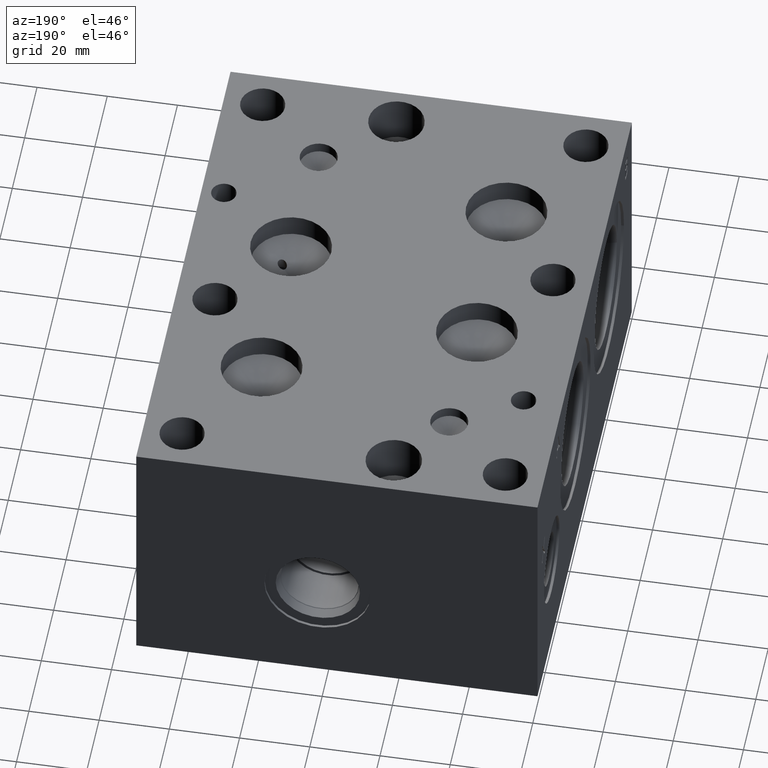
[diagram: clean part render]
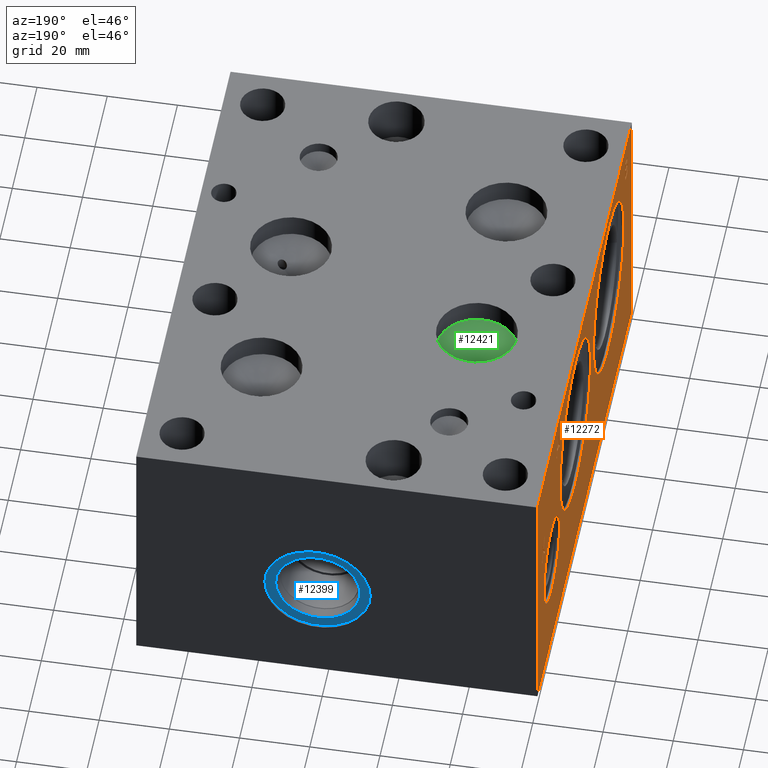
[diagram: same view with three faces highlighted in distinct colors, each labeled with its STEP entity id]
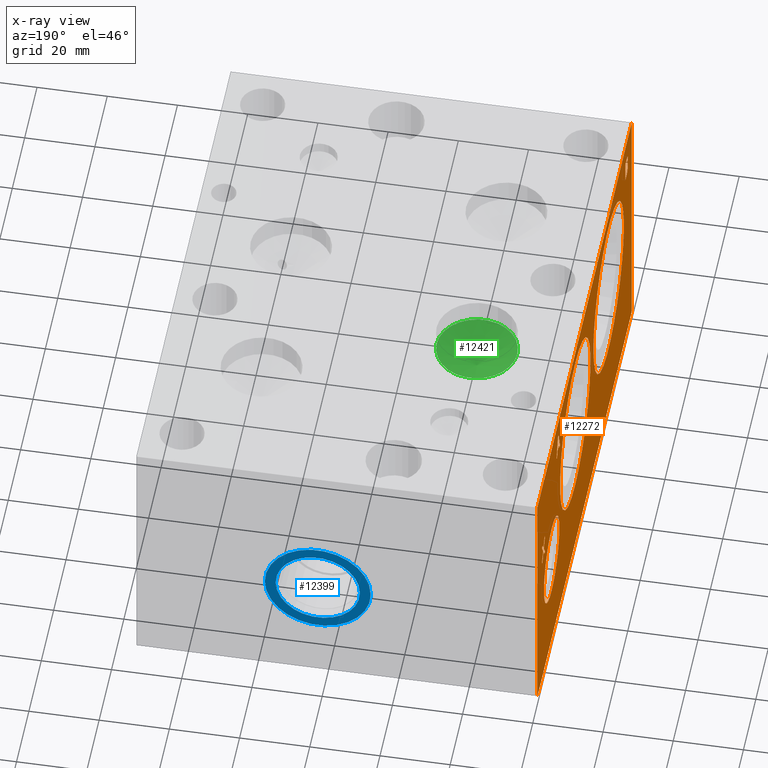
[diagram: x-ray of the same camera — body ghosted, the three highlighted faces saturated]
A machine part, auxiliary view with three faces highlighted in distinct colors.
The next image is the same camera in x-ray (body ghosted, the three faces saturated) — at least one of them is partly hidden behind the body in this view.
Their STEP definitions:

[orange] entity #12272 — the highlighted planar face has unit normal (-1, 0, 0).
#160=CIRCLE('',#12779,12.5095);
#161=CIRCLE('',#12780,12.5095);
#162=CIRCLE('',#12781,24.5618);
#163=CIRCLE('',#12782,24.5618);
#164=CIRCLE('',#12783,24.5618);
#165=CIRCLE('',#12784,24.5618);
#466=FACE_BOUND('',#2003,.T.);
#467=FACE_BOUND('',#2004,.T.);
#468=FACE_BOUND('',#2005,.T.);
#469=FACE_BOUND('',#2006,.T.);
#470=FACE_BOUND('',#2007,.T.);
#471=FACE_BOUND('',#2008,.T.);
#806=PLANE('',#12778);
#1315=FACE_OUTER_BOUND('',#2002,.T.);
#2002=EDGE_LOOP('',(#10177,#10178,#10179,#10180));
#2003=EDGE_LOOP('',(#10181,#10182,#10183,#10184,#10185,#10186,#10187,#10188,
#10189,#10190));
#2004=EDGE_LOOP('',(#10191,#10192));
#2005=EDGE_LOOP('',(#10193,#10194));
#2006=EDGE_LOOP('',(#10195,#10196));
#2007=EDGE_LOOP('',(#10197,#10198,#10199,#10200,#10201,#10202,#10203,#10204,
#10205,#10206,#10207,#10208));
#2008=EDGE_LOOP('',(#10209,#10210,#10211,#10212,#10213,#10214,#10215,#10216));
#2277=LINE('',#16056,#3394);
#2741=LINE('',#19233,#3858);
#3147=LINE('',#20354,#4264);
#3153=LINE('',#20417,#4270);
#3156=LINE('',#20423,#4273);
#3159=LINE('',#20429,#4276);
#3163=LINE('',#20471,#4280);
#3164=LINE('',#20472,#4281);
#3165=LINE('',#20487,#4282);
#3166=LINE('',#20489,#4283);
#3167=LINE('',#20491,#4284);
#3168=LINE('',#20493,#4285);
#3169=LINE('',#20495,#4286);
#3170=LINE('',#20497,#4287);
#3171=LINE('',#20499,#4288);
#3172=LINE('',#20501,#4289);
#3173=LINE('',#20503,#4290);
#3174=LINE('',#20505,#4291);
#3175=LINE('',#20507,#4292);
#3176=LINE('',#20508,#4293);
#3177=LINE('',#20511,#4294);
#3178=LINE('',#20513,#4295);
#3179=LINE('',#20515,#4296);
#3180=LINE('',#20517,#4297);
#3181=LINE('',#20519,#4298);
#3182=LINE('',#20521,#4299);
#3183=LINE('',#20523,#4300);
#3184=LINE('',#20524,#4301);
#3394=VECTOR('',#13283,10.);
#3858=VECTOR('',#14025,10.);
#4264=VECTOR('',#14727,10.);
#4270=VECTOR('',#14735,10.);
#4273=VECTOR('',#14740,10.);
#4276=VECTOR('',#14745,10.);
#4280=VECTOR('',#14753,10.);
#4281=VECTOR('',#14754,10.);
#4282=VECTOR('',#14767,10.);
#4283=VECTOR('',#14768,10.);
#4284=VECTOR('',#14769,10.);
#4285=VECTOR('',#14770,10.);
#4286=VECTOR('',#14771,10.);
#4287=VECTOR('',#14772,10.);
#4288=VECTOR('',#14773,10.);
#4289=VECTOR('',#14774,10.);
#4290=VECTOR('',#14775,10.);
#4291=VECTOR('',#14776,10.);
#4292=VECTOR('',#14777,10.);
#4293=VECTOR('',#14778,10.);
#4294=VECTOR('',#14779,10.);
#4295=VECTOR('',#14780,10.);
#4296=VECTOR('',#14781,10.);
#4297=VECTOR('',#14782,10.);
#4298=VECTOR('',#14783,10.);
#4299=VECTOR('',#14784,10.);
#4300=VECTOR('',#14785,10.);
#4301=VECTOR('',#14786,10.);
#4786=B_SPLINE_CURVE_WITH_KNOTS('',2,(#20340,#20341,#20342,#20343),
 .UNSPECIFIED.,.F.,.F.,(3,1,3),(0.,1.,2.),.UNSPECIFIED.);
#4788=B_SPLINE_CURVE_WITH_KNOTS('',2,(#20367,#20368,#20369,#20370),
 .UNSPECIFIED.,.F.,.F.,(3,1,3),(0.,1.,2.),.UNSPECIFIED.);
#4790=B_SPLINE_CURVE_WITH_KNOTS('',2,(#20386,#20387,#20388,#20389),
 .UNSPECIFIED.,.F.,.F.,(3,1,3),(0.,1.,2.),.UNSPECIFIED.);
#4792=B_SPLINE_CURVE_WITH_KNOTS('',2,(#20405,#20406,#20407,#20408),
 .UNSPECIFIED.,.F.,.F.,(3,1,3),(0.,1.,2.),.UNSPECIFIED.);
#4794=B_SPLINE_CURVE_WITH_KNOTS('',2,(#20442,#20443,#20444,#20445),
 .UNSPECIFIED.,.F.,.F.,(3,1,3),(0.,1.,2.),.UNSPECIFIED.);
#4796=B_SPLINE_CURVE_WITH_KNOTS('',2,(#20460,#20461,#20462,#20463),
 .UNSPECIFIED.,.F.,.F.,(3,1,3),(0.,1.,2.),.UNSPECIFIED.);
#4852=VERTEX_POINT('',#16052);
#4854=VERTEX_POINT('',#16055);
#5348=VERTEX_POINT('',#19231);
#5639=VERTEX_POINT('',#20338);
#5640=VERTEX_POINT('',#20339);
#5643=VERTEX_POINT('',#20353);
#5645=VERTEX_POINT('',#20366);
#5647=VERTEX_POINT('',#20385);
#5649=VERTEX_POINT('',#20404);
#5651=VERTEX_POINT('',#20416);
#5653=VERTEX_POINT('',#20422);
#5655=VERTEX_POINT('',#20428);
#5657=VERTEX_POINT('',#20441);
#5659=VERTEX_POINT('',#20470);
#5660=VERTEX_POINT('',#20473);
#5661=VERTEX_POINT('',#20474);
#5662=VERTEX_POINT('',#20477);
#5663=VERTEX_POINT('',#20478);
#5664=VERTEX_POINT('',#20481);
#5665=VERTEX_POINT('',#20482);
#5666=VERTEX_POINT('',#20485);
#5667=VERTEX_POINT('',#20486);
#5668=VERTEX_POINT('',#20488);
#5669=VERTEX_POINT('',#20490);
#5670=VERTEX_POINT('',#20492);
#5671=VERTEX_POINT('',#20494);
#5672=VERTEX_POINT('',#20496);
#5673=VERTEX_POINT('',#20498);
#5674=VERTEX_POINT('',#20500);
#5675=VERTEX_POINT('',#20502);
#5676=VERTEX_POINT('',#20504);
#5677=VERTEX_POINT('',#20506);
#5678=VERTEX_POINT('',#20509);
#5679=VERTEX_POINT('',#20510);
#5680=VERTEX_POINT('',#20512);
#5681=VERTEX_POINT('',#20514);
#5682=VERTEX_POINT('',#20516);
#5683=VERTEX_POINT('',#20518);
#5684=VERTEX_POINT('',#20520);
#5685=VERTEX_POINT('',#20522);
#6050=EDGE_CURVE('',#4854,#4852,#2277,.T.);
#6786=EDGE_CURVE('',#4852,#5348,#2741,.T.);
#7222=EDGE_CURVE('',#5639,#5640,#4786,.T.);
#7226=EDGE_CURVE('',#5643,#5639,#3147,.T.);
#7229=EDGE_CURVE('',#5645,#5643,#4788,.T.);
#7232=EDGE_CURVE('',#5647,#5645,#4790,.T.);
#7235=EDGE_CURVE('',#5649,#5647,#4792,.T.);
#7238=EDGE_CURVE('',#5651,#5649,#3153,.T.);
#7241=EDGE_CURVE('',#5653,#5651,#3156,.T.);
#7244=EDGE_CURVE('',#5655,#5653,#3159,.T.);
#7247=EDGE_CURVE('',#5657,#5655,#4794,.T.);
#7250=EDGE_CURVE('',#5640,#5657,#4796,.T.);
#7252=EDGE_CURVE('',#5659,#5348,#3163,.T.);
#7253=EDGE_CURVE('',#4854,#5659,#3164,.T.);
#7254=EDGE_CURVE('',#5660,#5661,#160,.T.);
#7255=EDGE_CURVE('',#5661,#5660,#161,.T.);
#7256=EDGE_CURVE('',#5662,#5663,#162,.T.);
#7257=EDGE_CURVE('',#5663,#5662,#163,.T.);
#7258=EDGE_CURVE('',#5664,#5665,#164,.T.);
#7259=EDGE_CURVE('',#5665,#5664,#165,.T.);
#7260=EDGE_CURVE('',#5666,#5667,#3165,.T.);
#7261=EDGE_CURVE('',#5667,#5668,#3166,.T.);
#7262=EDGE_CURVE('',#5668,#5669,#3167,.T.);
#7263=EDGE_CURVE('',#5669,#5670,#3168,.T.);
#7264=EDGE_CURVE('',#5670,#5671,#3169,.T.);
#7265=EDGE_CURVE('',#5671,#5672,#3170,.T.);
#7266=EDGE_CURVE('',#5672,#5673,#3171,.T.);
#7267=EDGE_CURVE('',#5673,#5674,#3172,.T.);
#7268=EDGE_CURVE('',#5674,#5675,#3173,.T.);
#7269=EDGE_CURVE('',#5675,#5676,#3174,.T.);
#7270=EDGE_CURVE('',#5676,#5677,#3175,.T.);
#7271=EDGE_CURVE('',#5677,#5666,#3176,.T.);
#7272=EDGE_CURVE('',#5678,#5679,#3177,.T.);
#7273=EDGE_CURVE('',#5679,#5680,#3178,.T.);
#7274=EDGE_CURVE('',#5680,#5681,#3179,.T.);
#7275=EDGE_CURVE('',#5681,#5682,#3180,.T.);
#7276=EDGE_CURVE('',#5682,#5683,#3181,.T.);
#7277=EDGE_CURVE('',#5683,#5684,#3182,.T.);
#7278=EDGE_CURVE('',#5684,#5685,#3183,.T.);
#7279=EDGE_CURVE('',#5685,#5678,#3184,.T.);
#10177=ORIENTED_EDGE('',*,*,#6050,.T.);
#10178=ORIENTED_EDGE('',*,*,#6786,.T.);
#10179=ORIENTED_EDGE('',*,*,#7252,.F.);
#10180=ORIENTED_EDGE('',*,*,#7253,.F.);
#10181=ORIENTED_EDGE('',*,*,#7222,.T.);
#10182=ORIENTED_EDGE('',*,*,#7250,.T.);
#10183=ORIENTED_EDGE('',*,*,#7247,.T.);
#10184=ORIENTED_EDGE('',*,*,#7244,.T.);
#10185=ORIENTED_EDGE('',*,*,#7241,.T.);
#10186=ORIENTED_EDGE('',*,*,#7238,.T.);
#10187=ORIENTED_EDGE('',*,*,#7235,.T.);
#10188=ORIENTED_EDGE('',*,*,#7232,.T.);
#10189=ORIENTED_EDGE('',*,*,#7229,.T.);
#10190=ORIENTED_EDGE('',*,*,#7226,.T.);
#10191=ORIENTED_EDGE('',*,*,#7254,.T.);
#10192=ORIENTED_EDGE('',*,*,#7255,.T.);
#10193=ORIENTED_EDGE('',*,*,#7256,.T.);
#10194=ORIENTED_EDGE('',*,*,#7257,.T.);
#10195=ORIENTED_EDGE('',*,*,#7258,.T.);
#10196=ORIENTED_EDGE('',*,*,#7259,.T.);
#10197=ORIENTED_EDGE('',*,*,#7260,.T.);
#10198=ORIENTED_EDGE('',*,*,#7261,.T.);
#10199=ORIENTED_EDGE('',*,*,#7262,.T.);
#10200=ORIENTED_EDGE('',*,*,#7263,.T.);
#10201=ORIENTED_EDGE('',*,*,#7264,.T.);
#10202=ORIENTED_EDGE('',*,*,#7265,.T.);
#10203=ORIENTED_EDGE('',*,*,#7266,.T.);
#10204=ORIENTED_EDGE('',*,*,#7267,.T.);
#10205=ORIENTED_EDGE('',*,*,#7268,.T.);
#10206=ORIENTED_EDGE('',*,*,#7269,.T.);
#10207=ORIENTED_EDGE('',*,*,#7270,.T.);
#10208=ORIENTED_EDGE('',*,*,#7271,.T.);
#10209=ORIENTED_EDGE('',*,*,#7272,.T.);
#10210=ORIENTED_EDGE('',*,*,#7273,.T.);
#10211=ORIENTED_EDGE('',*,*,#7274,.T.);
#10212=ORIENTED_EDGE('',*,*,#7275,.T.);
#10213=ORIENTED_EDGE('',*,*,#7276,.T.);
#10214=ORIENTED_EDGE('',*,*,#7277,.T.);
#10215=ORIENTED_EDGE('',*,*,#7278,.T.);
#10216=ORIENTED_EDGE('',*,*,#7279,.T.);
#12272=ADVANCED_FACE('',(#1315,#466,#467,#468,#469,#470,#471),#806,.T.);
#12778=AXIS2_PLACEMENT_3D('',#20469,#14751,#14752);
#12779=AXIS2_PLACEMENT_3D('',#20475,#14755,#14756);
#12780=AXIS2_PLACEMENT_3D('',#20476,#14757,#14758);
#12781=AXIS2_PLACEMENT_3D('',#20479,#14759,#14760);
#12782=AXIS2_PLACEMENT_3D('',#20480,#14761,#14762);
#12783=AXIS2_PLACEMENT_3D('',#20483,#14763,#14764);
#12784=AXIS2_PLACEMENT_3D('',#20484,#14765,#14766);
#13283=DIRECTION('',(0.,-1.,0.));
#14025=DIRECTION('',(0.,0.,1.));
#14727=DIRECTION('',(0.,0.,-1.));
#14735=DIRECTION('',(0.,-1.,-5.27829799114069E-15));
#14740=DIRECTION('',(0.,-3.49676548440641E-15,1.));
#14745=DIRECTION('',(0.,1.,4.87571594096894E-15));
#14751=DIRECTION('center_axis',(-1.,0.,0.));
#14752=DIRECTION('ref_axis',(0.,-1.,0.));
#14753=DIRECTION('',(0.,-1.,0.));
#14754=DIRECTION('',(0.,0.,1.));
#14755=DIRECTION('center_axis',(1.,0.,0.));
#14756=DIRECTION('ref_axis',(0.,0.,1.));
#14757=DIRECTION('center_axis',(1.,0.,0.));
#14758=DIRECTION('ref_axis',(0.,0.,1.));
#14759=DIRECTION('center_axis',(1.,0.,0.));
#14760=DIRECTION('ref_axis',(0.,0.,1.));
#14761=DIRECTION('center_axis',(1.,0.,0.));
#14762=DIRECTION('ref_axis',(0.,0.,1.));
#14763=DIRECTION('center_axis',(1.,0.,0.));
#14764=DIRECTION('ref_axis',(0.,1.,0.));
#14765=DIRECTION('center_axis',(1.,0.,0.));
#14766=DIRECTION('ref_axis',(0.,1.,0.));
#14767=DIRECTION('',(0.,-0.524855865490424,-0.851191118645101));
#14768=DIRECTION('',(0.,1.,0.));
#14769=DIRECTION('',(0.,0.520607424264652,0.853796175794039));
#14770=DIRECTION('',(0.,0.528135980540074,-0.849159811848732));
#14771=DIRECTION('',(0.,1.,0.));
#14772=DIRECTION('',(0.,-0.536610413405569,0.843830115736991));
#14773=DIRECTION('',(0.,0.526021863962618,0.850471045146919));
#14774=DIRECTION('',(0.,-1.,0.));
#14775=DIRECTION('',(0.,-0.519946946895741,-0.854198555614441));
#14776=DIRECTION('',(0.,-0.527625517089338,0.84947708251383));
#14777=DIRECTION('',(0.,-1.,0.));
#14778=DIRECTION('',(0.,0.535976720217374,-0.844232761378654));
#14779=DIRECTION('',(0.,1.,0.));
#14780=DIRECTION('',(0.,-0.319451166674572,0.947602739606769));
#14781=DIRECTION('',(0.,-1.,0.));
#14782=DIRECTION('',(0.,-0.319451166674564,-0.947602739606772));
#14783=DIRECTION('',(0.,1.,9.97689851504626E-15));
#14784=DIRECTION('',(0.,0.308774363938383,0.951135317488761));
#14785=DIRECTION('',(0.,1.,0.));
#14786=DIRECTION('',(0.,0.308774363938385,-0.951135317488761));
#16052=CARTESIAN_POINT('',(0.,0.,0.));
#16055=CARTESIAN_POINT('',(0.,152.4,0.));
#16056=CARTESIAN_POINT('',(0.,152.4,0.));
#19231=CARTESIAN_POINT('',(0.,0.,76.2));
#19233=CARTESIAN_POINT('',(0.,0.,0.));
#20338=CARTESIAN_POINT('',(0.,7.35087120722332,67.0300647768055));
#20339=CARTESIAN_POINT('',(0.,6.16217592523781,65.4502836011797));
#20340=CARTESIAN_POINT('Ctrl Pts',(0.,7.35087120722332,67.0300647768055));
#20341=CARTESIAN_POINT('Ctrl Pts',(0.,6.78482583484927,66.875688766158));
#20342=CARTESIAN_POINT('Ctrl Pts',(0.,6.16217592523781,66.0574959097264));
#20343=CARTESIAN_POINT('Ctrl Pts',(0.,6.16217592523781,65.4502836011797));
#20353=CARTESIAN_POINT('',(0.,7.35087120722332,67.060939978935));
#20354=CARTESIAN_POINT('',(0.,7.35087120722332,33.5304699894675));
#20366=CARTESIAN_POINT('',(0.,6.46063621248958,68.4194488726327));
#20367=CARTESIAN_POINT('Ctrl Pts',(0.,6.46063621248958,68.4194488726327));
#20368=CARTESIAN_POINT('Ctrl Pts',(0.,6.46063621248958,67.971758441755));
#20369=CARTESIAN_POINT('Ctrl Pts',(0.,6.93405597847515,67.2616287927767));
#20370=CARTESIAN_POINT('Ctrl Pts',(0.,7.35087120722332,67.060939978935));
#20385=CARTESIAN_POINT('',(0.,7.11930719125211,69.5927065535535));
#20386=CARTESIAN_POINT('Ctrl Pts',(0.,7.11930719125211,69.5927065535534));
#20387=CARTESIAN_POINT('Ctrl Pts',(0.,6.7745341008061,69.4126012077981));
#20388=CARTESIAN_POINT('Ctrl Pts',(0.,6.46063621248958,68.8208265003161));
#20389=CARTESIAN_POINT('Ctrl Pts',(0.,6.46063621248958,68.4194488726327));
#20404=CARTESIAN_POINT('',(0.,8.78656810624478,69.8499999046326));
#20405=CARTESIAN_POINT('Ctrl Pts',(0.,8.78656810624478,69.8499999046326));
#20406=CARTESIAN_POINT('Ctrl Pts',(0.,8.10731365939591,69.8499999046326));
#20407=CARTESIAN_POINT('Ctrl Pts',(0.,7.42805921254705,69.7625201652657));
#20408=CARTESIAN_POINT('Ctrl Pts',(0.,7.11930719125211,69.5927065535534));
#20416=CARTESIAN_POINT('',(0.,10.4692666223022,69.8499999046326));
#20417=CARTESIAN_POINT('',(0.,81.4346333111509,69.849999904633));
#20422=CARTESIAN_POINT('',(0.,10.4692666223022,63.5));
#20423=CARTESIAN_POINT('',(0.,10.4692666223023,31.7499999999998));
#20428=CARTESIAN_POINT('',(0.,8.64762969666208,63.5));
#20429=CARTESIAN_POINT('',(0.,80.5238148483309,63.5000000000004));
#20441=CARTESIAN_POINT('',(0.,6.82084690400035,64.0145867021582));
#20442=CARTESIAN_POINT('Ctrl Pts',(0.,6.82084690400035,64.0145867021582));
#20443=CARTESIAN_POINT('Ctrl Pts',(0.,7.18105759551112,63.7367098829928));
#20444=CARTESIAN_POINT('Ctrl Pts',(0.,7.99925045194271,63.5));
#20445=CARTESIAN_POINT('Ctrl Pts',(0.,8.64762969666208,63.5));
#20460=CARTESIAN_POINT('Ctrl Pts',(0.,6.16217592523781,65.4502836011797));
#20461=CARTESIAN_POINT('Ctrl Pts',(0.,6.16217592523781,64.9768638351941));
#20462=CARTESIAN_POINT('Ctrl Pts',(0.,6.52238661674858,64.251296585151));
#20463=CARTESIAN_POINT('Ctrl Pts',(0.,6.82084690400035,64.0145867021582));
#20469=CARTESIAN_POINT('Origin',(0.,152.4,0.));
#20470=CARTESIAN_POINT('',(0.,152.4,76.2));
#20471=CARTESIAN_POINT('',(0.,152.4,76.2));
#20472=CARTESIAN_POINT('',(0.,152.4,0.));
#20473=CARTESIAN_POINT('',(0.,129.3876,44.2595));
#20474=CARTESIAN_POINT('',(0.,129.3876,19.2405));
#20475=CARTESIAN_POINT('Origin',(0.,129.3876,31.75));
#20476=CARTESIAN_POINT('Origin',(0.,129.3876,31.75));
#20477=CARTESIAN_POINT('',(0.,91.2876,72.1868));
#20478=CARTESIAN_POINT('',(0.,91.2876,23.0632));
#20479=CARTESIAN_POINT('Origin',(0.,91.2876,47.625));
#20480=CARTESIAN_POINT('Origin',(0.,91.2876,47.625));
#20481=CARTESIAN_POINT('',(0.,61.8744,47.625));
#20482=CARTESIAN_POINT('',(0.,12.7508,47.625));
#20483=CARTESIAN_POINT('Origin',(0.,37.3126,47.625));
#20484=CARTESIAN_POINT('Origin',(0.,37.3126,47.625));
#20485=CARTESIAN_POINT('',(0.,142.209896723223,49.2588127555105));
#20486=CARTESIAN_POINT('',(0.,140.223592052893,46.0375));
#20487=CARTESIAN_POINT('',(0.,132.610196746922,33.6903874053433));
#20488=CARTESIAN_POINT('',(0.,141.19101505295,46.0375));
#20489=CARTESIAN_POINT('',(0.,146.311796026446,46.0375));
#20490=CARTESIAN_POINT('',(0.,142.734775159425,48.5692665746185));
#20491=CARTESIAN_POINT('',(0.,132.478347683459,31.7487255140342));
#20492=CARTESIAN_POINT('',(0.,144.309410468029,46.0375));
#20493=CARTESIAN_POINT('',(0.,154.973698624593,28.8909974737596));
#20494=CARTESIAN_POINT('',(0.,145.220228930849,46.0375));
#20495=CARTESIAN_POINT('',(0.,148.354705234014,46.0375));
#20496=CARTESIAN_POINT('',(0.,143.197903191367,49.2176458193379));
#20497=CARTESIAN_POINT('',(0.,156.677013889133,28.0214870121642));
#20498=CARTESIAN_POINT('',(0.,145.15847852659,52.3874999046326));
#20499=CARTESIAN_POINT('',(0.,133.461849052464,33.4764139307183));
#20500=CARTESIAN_POINT('',(0.,144.191055526532,52.3874999046326));
#20501=CARTESIAN_POINT('',(0.,148.779239263295,52.3874999046326));
#20502=CARTESIAN_POINT('',(0.,142.678170622187,49.9020461332083));
#20503=CARTESIAN_POINT('',(0.,133.667040455848,35.0980465742227));
#20504=CARTESIAN_POINT('',(0.,141.134410515713,52.3874999046326));
#20505=CARTESIAN_POINT('',(0.,155.214587154617,29.7184155159973));
#20506=CARTESIAN_POINT('',(0.,140.223592052892,52.3874999046326));
#20507=CARTESIAN_POINT('',(0.,146.767205257856,52.3874999046326));
#20508=CARTESIAN_POINT('',(0.,153.824943281159,30.9636098870519));
#20509=CARTESIAN_POINT('',(0.,120.63070301059,64.29375));
#20510=CARTESIAN_POINT('',(0.,121.484916936173,64.29375));
#20511=CARTESIAN_POINT('',(0.,136.515351505295,64.29375));
#20512=CARTESIAN_POINT('',(0.,119.344236255194,70.6437499046326));
#20513=CARTESIAN_POINT('',(0.,132.79361489759,30.7482372971422));
#20514=CARTESIAN_POINT('',(0.,118.304771116835,70.6437499046326));
#20515=CARTESIAN_POINT('',(0.,135.872118127597,70.6437499046326));
#20516=CARTESIAN_POINT('',(0.,116.164090435857,64.29375));
#20517=CARTESIAN_POINT('',(0.,109.352080246196,44.0869697739402));
#20518=CARTESIAN_POINT('',(0.,117.05432543059,64.29375));
#20519=CARTESIAN_POINT('',(0.,134.282045217928,64.2937500000002));
#20520=CARTESIAN_POINT('',(0.,117.630662537008,66.0690741224459));
#20521=CARTESIAN_POINT('',(0.,109.298188505474,40.4020782217392));
#20522=CARTESIAN_POINT('',(0.,120.054365904173,66.0690741224459));
#20523=CARTESIAN_POINT('',(0.,135.015331268504,66.0690741224459));
#20524=CARTESIAN_POINT('',(0.,131.29809603129,31.4343697130224));

[blue] entity #12399 — the highlighted planar face has unit normal (0, -1, 0).
#311=CIRCLE('',#13056,15.08);
#312=CIRCLE('',#13057,15.08);
#313=CIRCLE('',#13059,12.);
#314=CIRCLE('',#13060,12.);
#489=FACE_BOUND('',#2153,.T.);
#850=PLANE('',#13058);
#1442=FACE_OUTER_BOUND('',#2152,.T.);
#2152=EDGE_LOOP('',(#10856,#10857));
#2153=EDGE_LOOP('',(#10858,#10859));
#5878=VERTEX_POINT('',#21364);
#5879=VERTEX_POINT('',#21366);
#5880=VERTEX_POINT('',#21370);
#5881=VERTEX_POINT('',#21371);
#7577=EDGE_CURVE('',#5878,#5879,#311,.T.);
#7578=EDGE_CURVE('',#5879,#5878,#312,.T.);
#7579=EDGE_CURVE('',#5880,#5881,#313,.T.);
#7580=EDGE_CURVE('',#5881,#5880,#314,.T.);
#10856=ORIENTED_EDGE('',*,*,#7578,.F.);
#10857=ORIENTED_EDGE('',*,*,#7577,.F.);
#10858=ORIENTED_EDGE('',*,*,#7579,.T.);
#10859=ORIENTED_EDGE('',*,*,#7580,.T.);
#12399=ADVANCED_FACE('',(#1442,#489),#850,.F.);
#13056=AXIS2_PLACEMENT_3D('',#21367,#15456,#15457);
#13057=AXIS2_PLACEMENT_3D('',#21368,#15458,#15459);
#13058=AXIS2_PLACEMENT_3D('',#21369,#15460,#15461);
#13059=AXIS2_PLACEMENT_3D('',#21372,#15462,#15463);
#13060=AXIS2_PLACEMENT_3D('',#21373,#15464,#15465);
#15456=DIRECTION('center_axis',(0.,-1.,0.));
#15457=DIRECTION('ref_axis',(1.,0.,0.));
#15458=DIRECTION('center_axis',(0.,-1.,0.));
#15459=DIRECTION('ref_axis',(1.,0.,0.));
#15460=DIRECTION('center_axis',(0.,-1.,0.));
#15461=DIRECTION('ref_axis',(0.,0.,-1.));
#15462=DIRECTION('center_axis',(0.,-1.,0.));
#15463=DIRECTION('ref_axis',(1.,0.,0.));
#15464=DIRECTION('center_axis',(0.,-1.,0.));
#15465=DIRECTION('ref_axis',(1.,0.,0.));
#21364=CARTESIAN_POINT('',(47.6326,151.6126,31.75));
#21366=CARTESIAN_POINT('',(77.7926,151.6126,31.75));
#21367=CARTESIAN_POINT('Origin',(62.7126,151.6126,31.75));
#21368=CARTESIAN_POINT('Origin',(62.7126,151.6126,31.75));
#21369=CARTESIAN_POINT('Origin',(74.7126,151.6126,31.75));
#21370=CARTESIAN_POINT('',(74.7126,151.6126,31.75));
#21371=CARTESIAN_POINT('',(50.7126,151.6126,31.75));
#21372=CARTESIAN_POINT('Origin',(62.7126,151.6126,31.75));
#21373=CARTESIAN_POINT('Origin',(62.7126,151.6126,31.75));

[green] entity #12421 — the highlighted conical surface has half-angle 60 deg.
#136=CONICAL_SURFACE('',#13120,5.7531,1.0471975511966);
#353=CIRCLE('',#13121,11.5062);
#354=CIRCLE('',#13122,11.5062);
#1464=FACE_OUTER_BOUND('',#2178,.T.);
#2178=EDGE_LOOP('',(#10968,#10969,#10970,#10971));
#3330=LINE('',#21497,#4447);
#4447=VECTOR('',#15606,5.7531);
#5923=VERTEX_POINT('',#21493);
#5924=VERTEX_POINT('',#21494);
#5925=VERTEX_POINT('',#21496);
#7637=EDGE_CURVE('',#5923,#5924,#353,.T.);
#7638=EDGE_CURVE('',#5924,#5925,#3330,.T.);
#7639=EDGE_CURVE('',#5924,#5923,#354,.T.);
#10968=ORIENTED_EDGE('',*,*,#7637,.T.);
#10969=ORIENTED_EDGE('',*,*,#7638,.T.);
#10970=ORIENTED_EDGE('',*,*,#7638,.F.);
#10971=ORIENTED_EDGE('',*,*,#7639,.T.);
#12421=ADVANCED_FACE('',(#1464),#136,.F.);
#13120=AXIS2_PLACEMENT_3D('',#21492,#15602,#15603);
#13121=AXIS2_PLACEMENT_3D('',#21495,#15604,#15605);
#13122=AXIS2_PLACEMENT_3D('',#21498,#15607,#15608);
#15602=DIRECTION('center_axis',(0.,0.,1.));
#15603=DIRECTION('ref_axis',(1.,0.,0.));
#15604=DIRECTION('center_axis',(0.,0.,1.));
#15605=DIRECTION('ref_axis',(1.,0.,0.));
#15606=DIRECTION('',(0.866025403784439,1.06057523872491E-16,-0.5));
#15607=DIRECTION('center_axis',(0.,0.,1.));
#15608=DIRECTION('ref_axis',(1.,0.,0.));
#21492=CARTESIAN_POINT('Origin',(28.575,88.1126,66.2353361663252));
#21493=CARTESIAN_POINT('',(40.0812,88.1126,69.55689));
#21494=CARTESIAN_POINT('',(17.0688,88.1126,69.55689));
#21495=CARTESIAN_POINT('Origin',(28.575,88.1126,69.55689));
#21496=CARTESIAN_POINT('',(28.575,88.1126,62.9137823326503));
#21497=CARTESIAN_POINT('',(22.8219,88.1126,66.2353361663252));
#21498=CARTESIAN_POINT('Origin',(28.575,88.1126,69.55689));